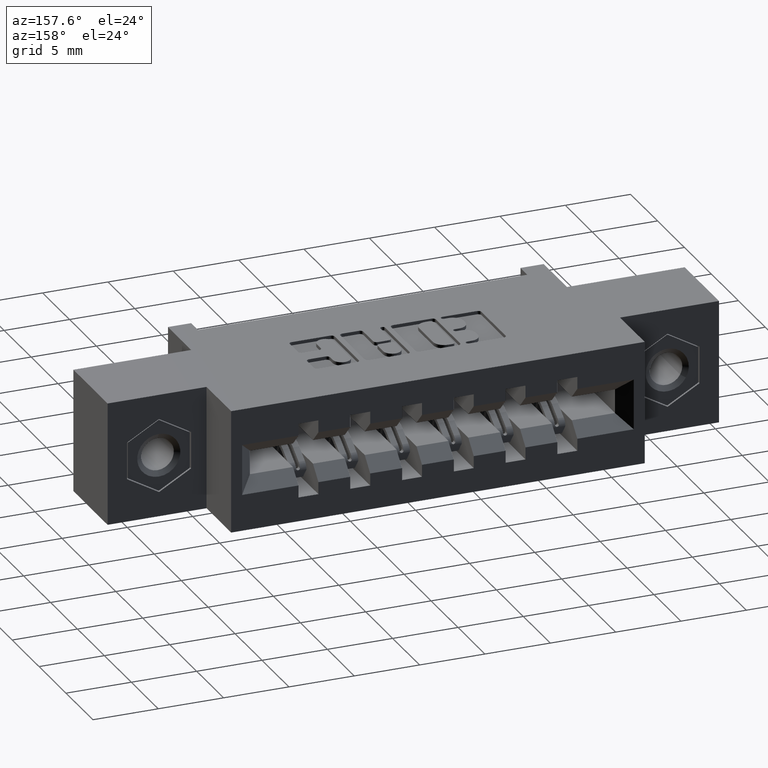
[diagram: clean part render]
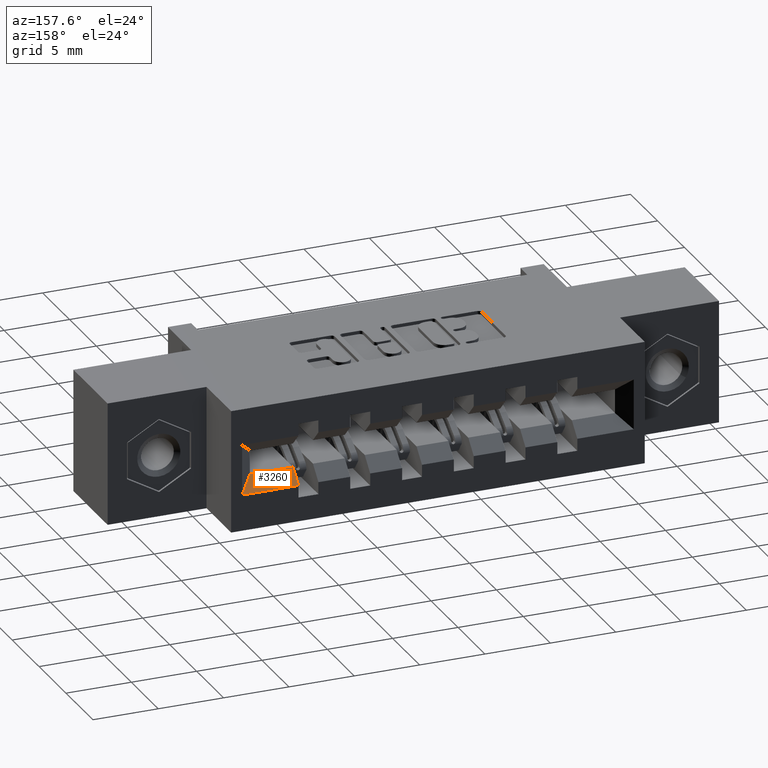
[diagram: same view with one face highlighted and labeled with its STEP entity id]
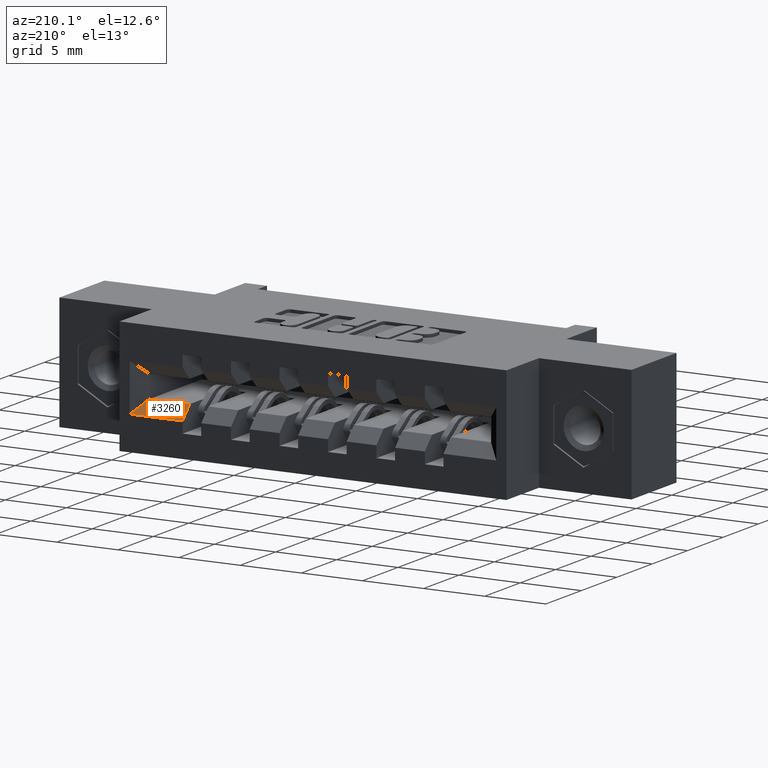
[diagram: same view with one face highlighted and labeled with its STEP entity id]
A machine part, auxiliary view. The second image highlights one B-rep face of the part: STEP entity #3260.
A second angle (auxiliary view) of the same face is appended — the face is thin or edge-on in the first view.
In plain terms, the highlighted planar face has unit normal (0, -0.7071, -0.7071).
Its self-contained STEP definition (entity closure, byte-faithful):
#78 = AXIS2_PLACEMENT_3D ( 'NONE', #7113, #3075, #3790 ) ;
#82 = EDGE_CURVE ( 'NONE', #8520, #10024, #766, .T. ) ;
#278 = ORIENTED_EDGE ( 'NONE', *, *, #8595, .T. ) ;
#577 = LINE ( 'NONE', #4802, #7385 ) ;
#766 = LINE ( 'NONE', #9412, #1297 ) ;
#1297 = VECTOR ( 'NONE', #10054, 39.37007874015748100 ) ;
#1637 = ORIENTED_EDGE ( 'NONE', *, *, #82, .F. ) ;
#1812 = ORIENTED_EDGE ( 'NONE', *, *, #3433, .F. ) ;
#1847 = VERTEX_POINT ( 'NONE', #8354 ) ;
#1937 = DIRECTION ( 'NONE',  ( 0.5773502691896269500, 0.5773502691896230700, -0.5773502691896269500 ) ) ;
#2906 = EDGE_CURVE ( 'NONE', #7993, #1847, #577, .T. ) ;
#2962 = PLANE ( 'NONE',  #78 ) ;
#3075 = DIRECTION ( 'NONE',  ( 0.0000000000000000000, -0.7071067811865499000, -0.7071067811865451300 ) ) ;
#3260 = ADVANCED_FACE ( 'NONE', ( #3837 ), #2962, .F. ) ;
#3405 = ORIENTED_EDGE ( 'NONE', *, *, #2906, .F. ) ;
#3433 = EDGE_CURVE ( 'NONE', #1847, #8520, #9563, .T. ) ;
#3790 = DIRECTION ( 'NONE',  ( 0.0000000000000000000, 0.7071067811865451300, -0.7071067811865499000 ) ) ;
#3837 = FACE_OUTER_BOUND ( 'NONE', #9445, .T. ) ;
#4309 = VECTOR ( 'NONE', #1937, 39.37007874015748900 ) ;
#4802 = CARTESIAN_POINT ( 'NONE',  ( 0.3710000000000000000, 0.5600000000000003900, -0.2210000000000000900 ) ) ;
#4823 = DIRECTION ( 'NONE',  ( -0.0000000000000000000, 0.7071067811865451300, -0.7071067811865499000 ) ) ;
#4930 = CARTESIAN_POINT ( 'NONE',  ( 1.511000000000000600, 0.5999999999999999800, -0.2609999999999999500 ) ) ;
#5920 = CARTESIAN_POINT ( 'NONE',  ( 1.340999999999999700, 0.5600000000000003900, -0.2210000000000000900 ) ) ;
#6455 = LINE ( 'NONE', #8400, #4309 ) ;
#6460 = DIRECTION ( 'NONE',  ( -1.000000000000000000, 0.0000000000000000000, 0.0000000000000000000 ) ) ;
#6481 = VECTOR ( 'NONE', #4823, 39.37007874015748100 ) ;
#6882 = CARTESIAN_POINT ( 'NONE',  ( 1.471000000000000800, 0.5600000000000003900, -0.2210000000000000900 ) ) ;
#7113 = CARTESIAN_POINT ( 'NONE',  ( 0.3710000000000000000, 0.5600000000000003900, -0.2210000000000000900 ) ) ;
#7385 = VECTOR ( 'NONE', #6460, 39.37007874015748100 ) ;
#7993 = VERTEX_POINT ( 'NONE', #6882 ) ;
#8235 = CARTESIAN_POINT ( 'NONE',  ( 1.340999999999999700, 0.5999999999999999800, -0.2609999999999999500 ) ) ;
#8354 = CARTESIAN_POINT ( 'NONE',  ( 1.340999999999999700, 0.5600000000000003900, -0.2210000000000000900 ) ) ;
#8400 = CARTESIAN_POINT ( 'NONE',  ( 1.471000000000000800, 0.5600000000000003900, -0.2210000000000000900 ) ) ;
#8520 = VERTEX_POINT ( 'NONE', #8235 ) ;
#8595 = EDGE_CURVE ( 'NONE', #7993, #10024, #6455, .T. ) ;
#9412 = CARTESIAN_POINT ( 'NONE',  ( 0.0000000000000000000, 0.5999999999999999800, -0.2609999999999999500 ) ) ;
#9445 = EDGE_LOOP ( 'NONE', ( #1812, #3405, #278, #1637 ) ) ;
#9563 = LINE ( 'NONE', #5920, #6481 ) ;
#10024 = VERTEX_POINT ( 'NONE', #4930 ) ;
#10054 = DIRECTION ( 'NONE',  ( 1.000000000000000000, 0.0000000000000000000, 0.0000000000000000000 ) ) ;